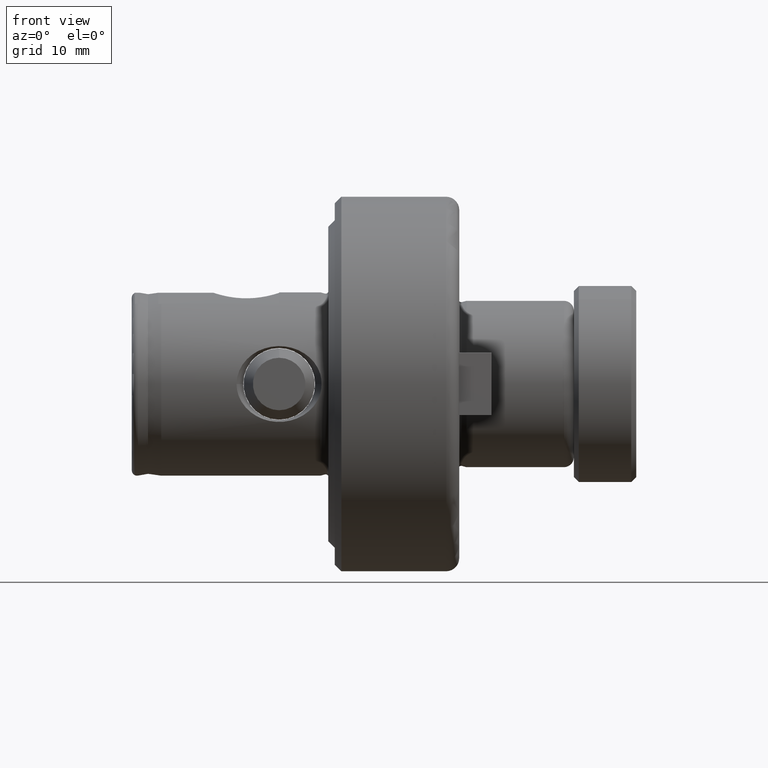
[diagram: clean part render]
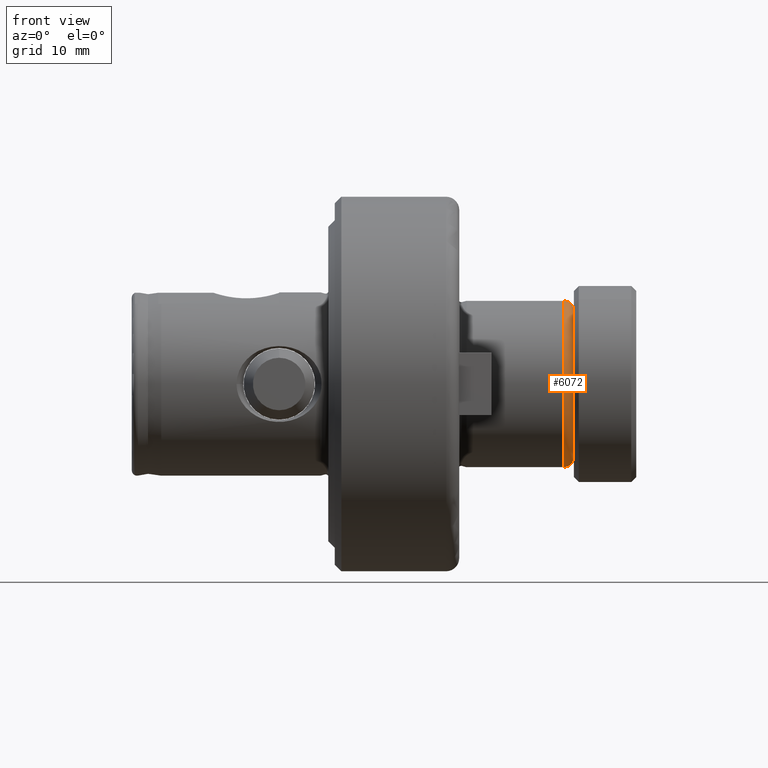
[diagram: same view with one face highlighted and labeled with its STEP entity id]
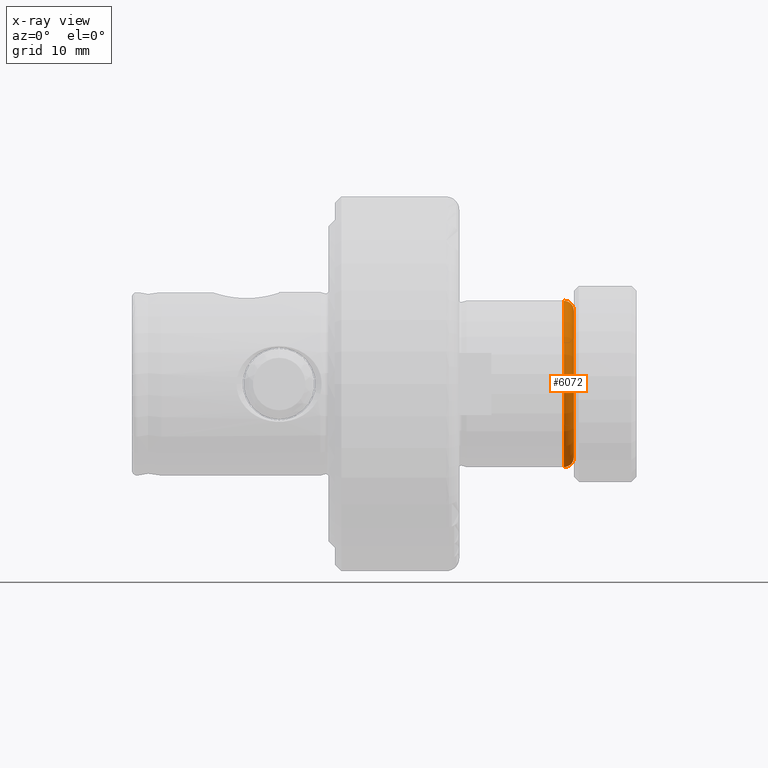
[diagram: x-ray of the same camera — body ghosted, the highlighted face saturated]
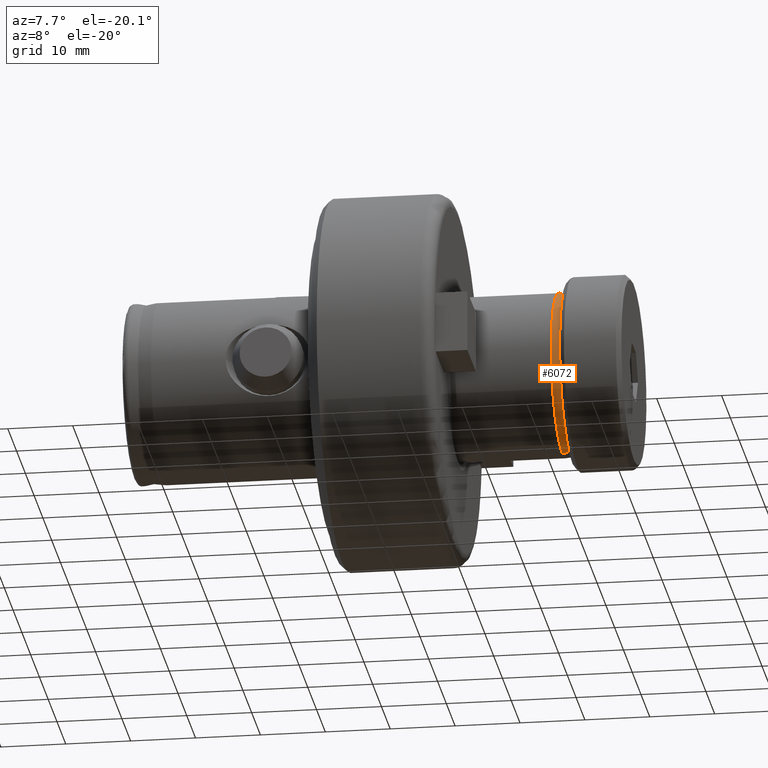
[diagram: same view with one face highlighted and labeled with its STEP entity id]
A machine part, front view. The second image highlights one B-rep face of the part: STEP entity #6072.
The next image is the same camera in x-ray: the body ghosted, the highlighted face saturated — about 0% of this face is hidden behind the body in this view.
A second angle (auxiliary view) of the same face is appended — the face is thin or edge-on in the first view.
In plain terms, the highlighted toroidal blend (fillet) surface has major radius 11.2 mm and minor (blend) radius 1.5 mm.
Its self-contained STEP definition (entity closure, byte-faithful):
#67 = CARTESIAN_POINT ( 'NONE',  ( 66.00000000000000000, 1.555301434917138400E-015, -12.69999999999999900 ) ) ;
#137 = CARTESIAN_POINT ( 'NONE',  ( 67.50000000000000000, 0.0000000000000000000, 0.0000000000000000000 ) ) ;
#383 = EDGE_LOOP ( 'NONE', ( #688, #1665, #2888, #2226 ) ) ;
#688 = ORIENTED_EDGE ( 'NONE', *, *, #1730, .F. ) ;
#952 = VERTEX_POINT ( 'NONE', #7588 ) ;
#1176 = DIRECTION ( 'NONE',  ( 0.0000000000000000000, -1.224646799147353500E-016, 1.000000000000000000 ) ) ;
#1350 = DIRECTION ( 'NONE',  ( 0.0000000000000000000, 0.0000000000000000000, 1.000000000000000000 ) ) ;
#1394 = DIRECTION ( 'NONE',  ( 0.0000000000000000000, -1.000000000000000000, 0.0000000000000000000 ) ) ;
#1418 = AXIS2_PLACEMENT_3D ( 'NONE', #3205, #6862, #1350 ) ;
#1520 = CARTESIAN_POINT ( 'NONE',  ( 66.00000000000000000, 0.0000000000000000000, 0.0000000000000000000 ) ) ;
#1577 = DIRECTION ( 'NONE',  ( -1.000000000000000000, -0.0000000000000000000, -0.0000000000000000000 ) ) ;
#1595 = EDGE_CURVE ( 'NONE', #6681, #952, #5984, .T. ) ;
#1598 = CARTESIAN_POINT ( 'NONE',  ( 67.50000000000000000, 0.0000000000000000000, 11.19999999999999900 ) ) ;
#1665 = ORIENTED_EDGE ( 'NONE', *, *, #2508, .T. ) ;
#1730 = EDGE_CURVE ( 'NONE', #5479, #6681, #2970, .T. ) ;
#2042 = AXIS2_PLACEMENT_3D ( 'NONE', #4240, #4845, #1176 ) ;
#2226 = ORIENTED_EDGE ( 'NONE', *, *, #1595, .F. ) ;
#2508 = EDGE_CURVE ( 'NONE', #5479, #7379, #3613, .T. ) ;
#2602 = DIRECTION ( 'NONE',  ( -1.000000000000000000, -0.0000000000000000000, -0.0000000000000000000 ) ) ;
#2838 = AXIS2_PLACEMENT_3D ( 'NONE', #6180, #1394, #4396 ) ;
#2888 = ORIENTED_EDGE ( 'NONE', *, *, #6650, .T. ) ;
#2970 = CIRCLE ( 'NONE', #2042, 1.499999999999999600 ) ;
#3205 = CARTESIAN_POINT ( 'NONE',  ( 66.00000000000000000, 0.0000000000000000000, 0.0000000000000000000 ) ) ;
#3613 = CIRCLE ( 'NONE', #5231, 11.19999999999999900 ) ;
#3704 = CARTESIAN_POINT ( 'NONE',  ( 67.50000000000000000, 1.463452924981087100E-015, -11.19999999999999900 ) ) ;
#4081 = FACE_OUTER_BOUND ( 'NONE', #383, .T. ) ;
#4240 = CARTESIAN_POINT ( 'NONE',  ( 66.00000000000000000, 1.371604415045035500E-015, -11.19999999999999900 ) ) ;
#4396 = DIRECTION ( 'NONE',  ( 0.0000000000000000000, 0.0000000000000000000, -1.000000000000000000 ) ) ;
#4845 = DIRECTION ( 'NONE',  ( -0.0000000000000000000, 1.000000000000000000, 1.224646799147353200E-016 ) ) ;
#5231 = AXIS2_PLACEMENT_3D ( 'NONE', #137, #2602, #6776 ) ;
#5479 = VERTEX_POINT ( 'NONE', #3704 ) ;
#5984 = CIRCLE ( 'NONE', #7056, 12.69999999999999900 ) ;
#6072 = ADVANCED_FACE ( 'NONE', ( #4081 ), #7690, .T. ) ;
#6180 = CARTESIAN_POINT ( 'NONE',  ( 66.00000000000000000, 0.0000000000000000000, 11.19999999999999900 ) ) ;
#6650 = EDGE_CURVE ( 'NONE', #7379, #952, #7185, .T. ) ;
#6681 = VERTEX_POINT ( 'NONE', #67 ) ;
#6776 = DIRECTION ( 'NONE',  ( 0.0000000000000000000, 0.0000000000000000000, 1.000000000000000000 ) ) ;
#6862 = DIRECTION ( 'NONE',  ( -1.000000000000000000, -0.0000000000000000000, -0.0000000000000000000 ) ) ;
#7022 = DIRECTION ( 'NONE',  ( 0.0000000000000000000, 0.0000000000000000000, 1.000000000000000000 ) ) ;
#7056 = AXIS2_PLACEMENT_3D ( 'NONE', #1520, #1577, #7022 ) ;
#7185 = CIRCLE ( 'NONE', #2838, 1.499999999999999600 ) ;
#7379 = VERTEX_POINT ( 'NONE', #1598 ) ;
#7588 = CARTESIAN_POINT ( 'NONE',  ( 66.00000000000000000, 0.0000000000000000000, 12.69999999999999900 ) ) ;
#7690 = TOROIDAL_SURFACE ( 'NONE', #1418, 11.19999999999999900, 1.500000000000000400 ) ;